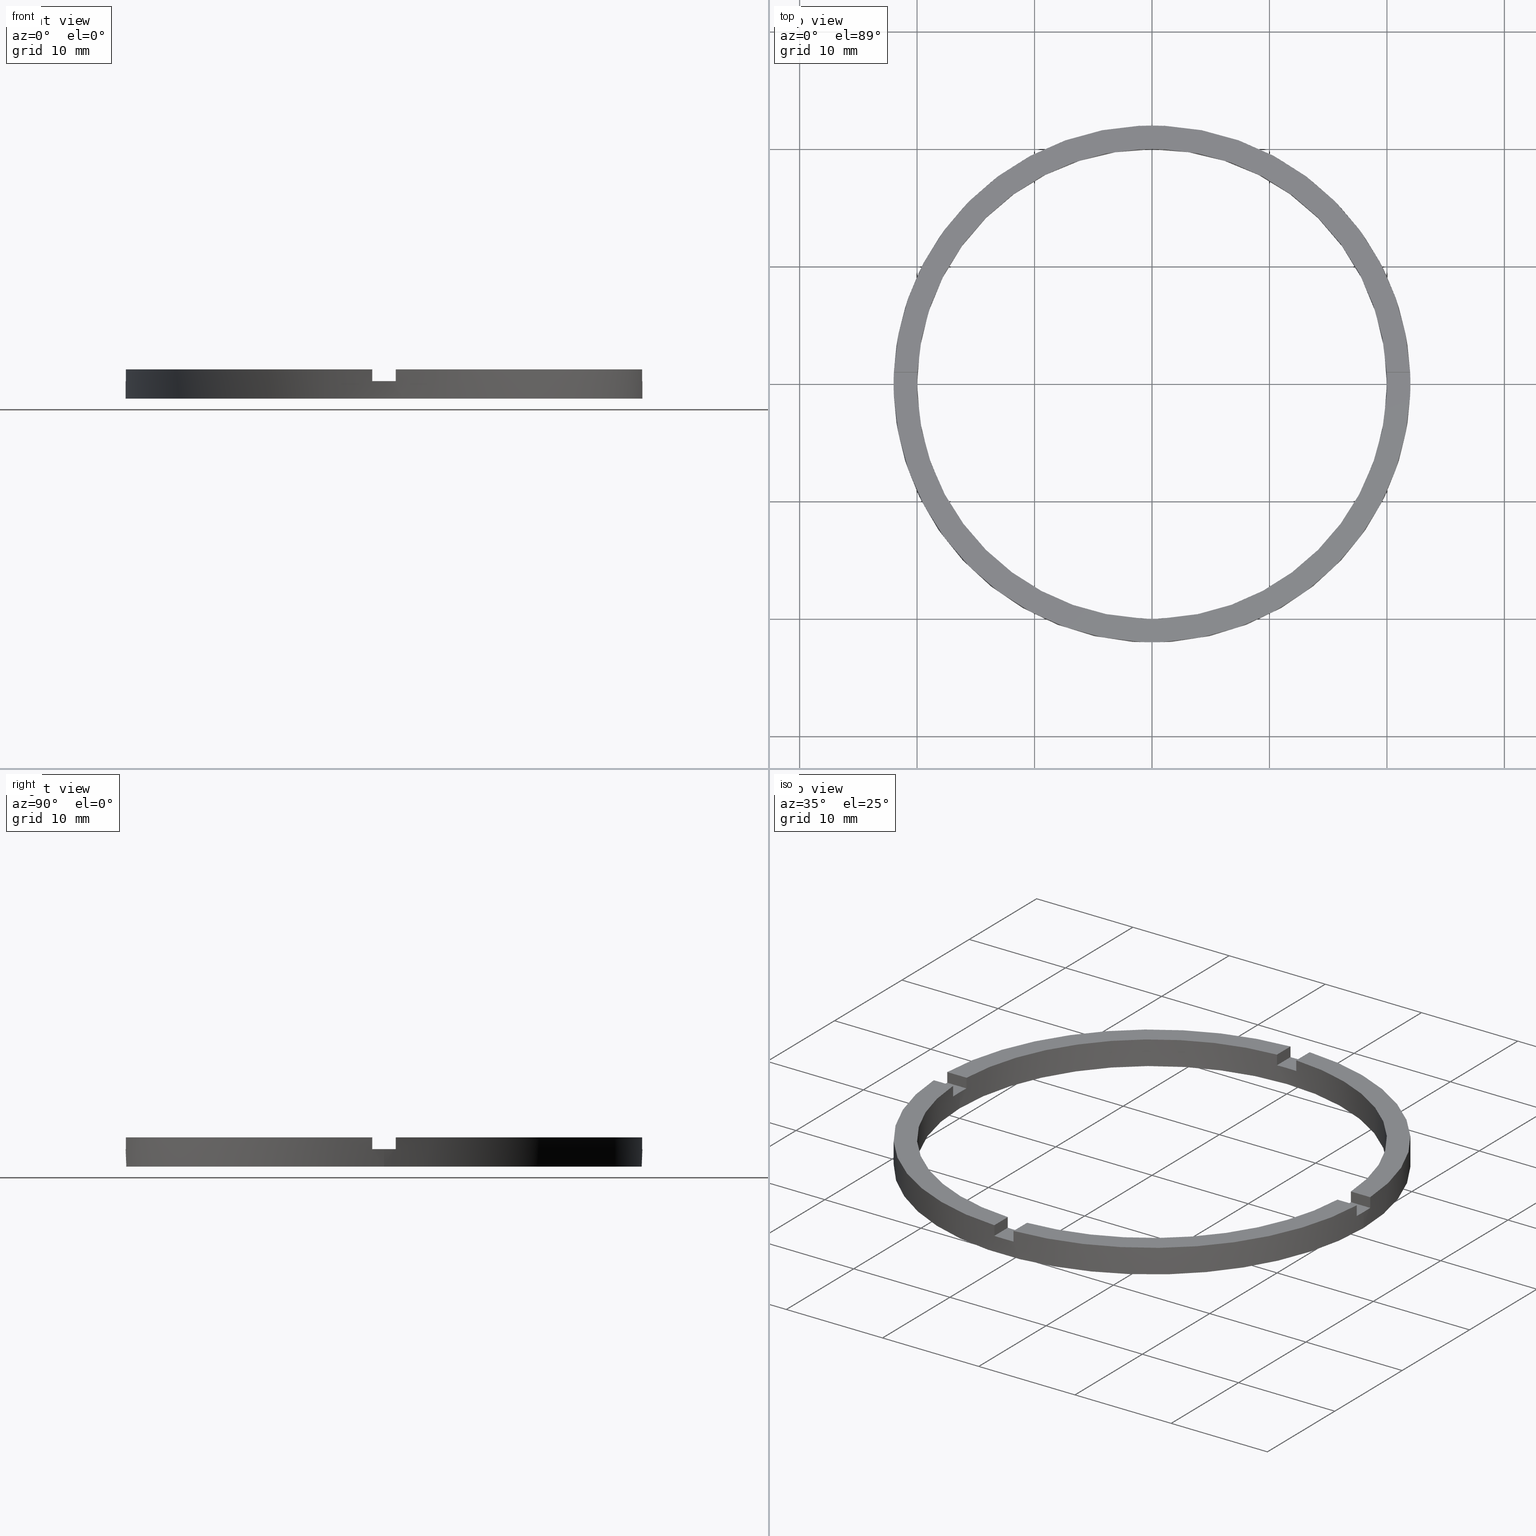
[diagram: canonical four-view strip — front | top / right | iso, engineering-drawing reading convention]
A machine part, canonical four-view strip (front | top / right | iso — engineering-drawing reading convention). The complete STEP part file that produces these views, byte-faithful:
ISO-10303-21;
HEADER;
FILE_DESCRIPTION (( 'STEP AP203' ),
    '1' );
FILE_NAME ('514092.step',
    '2024-12-26T02:36:46',
    ( 'MSI' ),
    ( '' ),
    'SwSTEP 2.0',
    'SolidWorks 2020',
    '' );
FILE_SCHEMA (( 'CONFIG_CONTROL_DESIGN' ));
ENDSEC;

DATA;
#1 = CC_DESIGN_SECURITY_CLASSIFICATION ( #523, ( #273 ) ) ;
#2 = EDGE_CURVE ( 'NONE', #728, #453, #232, .T. ) ;
#3 = DIRECTION ( 'NONE',  ( 0.000000000000000000, 0.000000000000000000, 1.000000000000000000 ) ) ;
#4 = EDGE_CURVE ( 'NONE', #433, #706, #745, .T. ) ;
#5 = CALENDAR_DATE ( 2024, 26, 12 ) ;
#6 = CARTESIAN_POINT ( 'NONE',  ( 0.000000000000000000, 0.000000000000000000, 2.500000000000000000 ) ) ;
#7 = CC_DESIGN_DATE_AND_TIME_ASSIGNMENT ( #557, #142, ( #558 ) ) ;
#8 = DIRECTION ( 'NONE',  ( 1.000000000000000000, 4.336808689942018352E-17, 0.000000000000000000 ) ) ;
#9 = CALENDAR_DATE ( 2024, 26, 12 ) ;
#10 = DIRECTION ( 'NONE',  ( 1.000000000000000000, 0.000000000000000000, 0.000000000000000000 ) ) ;
#11 = EDGE_CURVE ( 'NONE', #179, #433, #228, .T. ) ;
#12 = APPROVAL_DATE_TIME ( #554, #33 ) ;
#13 = CARTESIAN_POINT ( 'NONE',  ( 0.000000000000000000, 0.000000000000000000, 0.000000000000000000 ) ) ;
#14 = PERSON_AND_ORGANIZATION ( #722, #606 ) ;
#15 = APPROVAL_DATE_TIME ( #549, #619 ) ;
#16 = DIRECTION ( 'NONE',  ( 1.000000000000000000, 0.000000000000000000, 0.000000000000000000 ) ) ;
#17 = CARTESIAN_POINT ( 'NONE',  ( 0.000000000000000000, 0.000000000000000000, 2.500000000000000000 ) ) ;
#18 = APPROVAL_PERSON_ORGANIZATION ( #563, #33, #540 ) ;
#19 = CARTESIAN_POINT ( 'NONE',  ( -1.000000000000161648, -19.97498435543817052, 2.500000000000000000 ) ) ;
#20 = COORDINATED_UNIVERSAL_TIME_OFFSET ( 8, 0, .AHEAD. ) ;
#21 = CARTESIAN_POINT ( 'NONE',  ( 20.00000000000000000, 2.449293598294706513E-15, 1.500000000000000000 ) ) ;
#22 = DIRECTION ( 'NONE',  ( 0.000000000000000000, 1.000000000000000000, 0.000000000000000000 ) ) ;
#23 = APPROVAL_PERSON_ORGANIZATION ( #14, #619, #598 ) ;
#24 = CARTESIAN_POINT ( 'NONE',  ( -21.97726097583590743, -1.000000000000025091, 1.500000000000000000 ) ) ;
#25 = CARTESIAN_POINT ( 'NONE',  ( 0.9999999999998384625, -19.97498435543818829, 1.500000000000000000 ) ) ;
#26 = CARTESIAN_POINT ( 'NONE',  ( 0.9999999999999742428, 21.97726097583591098, 2.500000000000000000 ) ) ;
#27 = DATE_AND_TIME ( #5, #293 ) ;
#28 = AXIS2_PLACEMENT_3D ( 'NONE', #575, #387, #127 ) ;
#29 = FACE_OUTER_BOUND ( 'NONE', #560, .T. ) ;
#30 = AXIS2_PLACEMENT_3D ( 'NONE', #77, #321, #422 ) ;
#31 = DIRECTION ( 'NONE',  ( 0.000000000000000000, 0.000000000000000000, 1.000000000000000000 ) ) ;
#32 = FACE_OUTER_BOUND ( 'NONE', #184, .T. ) ;
#33 = APPROVAL ( #209, 'δָ��' ) ;
#34 = FACE_OUTER_BOUND ( 'NONE', #444, .T. ) ;
#35 = EDGE_CURVE ( 'NONE', #464, #44, #719, .T. ) ;
#36 = LINE ( 'NONE', #280, #40 ) ;
#37 = LINE ( 'NONE', #628, #313 ) ;
#38 = DIRECTION ( 'NONE',  ( 0.000000000000000000, 0.000000000000000000, 1.000000000000000000 ) ) ;
#39 = APPROVAL_STATUS ( 'not_yet_approved' ) ;
#40 = VECTOR ( 'NONE', #569, 1000.000000000000000 ) ;
#41 = ORIENTED_EDGE ( 'NONE', *, *, #555, .T. ) ;
#42 = LINE ( 'NONE', #337, #320 ) ;
#43 = ORIENTED_EDGE ( 'NONE', *, *, #407, .F. ) ;
#44 = VERTEX_POINT ( 'NONE', #663 ) ;
#45 = VECTOR ( 'NONE', #147, 1000.000000000000000 ) ;
#46 = ORIENTED_EDGE ( 'NONE', *, *, #561, .T. ) ;
#47 = VECTOR ( 'NONE', #534, 1000.000000000000000 ) ;
#48 = DIRECTION ( 'NONE',  ( 0.000000000000000000, 0.000000000000000000, 1.000000000000000000 ) ) ;
#49 = CARTESIAN_POINT ( 'NONE',  ( 0.000000000000000000, 0.000000000000000000, 1.500000000000000000 ) ) ;
#50 = APPROVAL ( #128, 'δָ��' ) ;
#51 = VECTOR ( 'NONE', #291, 1000.000000000000000 ) ;
#52 = LINE ( 'NONE', #132, #47 ) ;
#53 = VECTOR ( 'NONE', #485, 1000.000000000000000 ) ;
#54 = CARTESIAN_POINT ( 'NONE',  ( 21.97726097583590388, -1.000000000000158096, 1.500000000000000000 ) ) ;
#55 = FACE_OUTER_BOUND ( 'NONE', #454, .T. ) ;
#56 = EDGE_CURVE ( 'NONE', #473, #58, #500, .T. ) ;
#57 = LINE ( 'NONE', #213, #310 ) ;
#58 = VERTEX_POINT ( 'NONE', #26 ) ;
#59 = ADVANCED_FACE ( 'NONE', ( #501 ), #133, .F. ) ;
#60 = VECTOR ( 'NONE', #605, 1000.000000000000000 ) ;
#61 = ORIENTED_EDGE ( 'NONE', *, *, #35, .T. ) ;
#62 = ADVANCED_FACE ( 'NONE', ( #202 ), #731, .F. ) ;
#63 = FACE_OUTER_BOUND ( 'NONE', #148, .T. ) ;
#64 = LINE ( 'NONE', #476, #579 ) ;
#65 = VECTOR ( 'NONE', #662, 1000.000000000000000 ) ;
#66 = PRODUCT ( '514092', '514092', '', ( #289 ) ) ;
#67 = FACE_OUTER_BOUND ( 'NONE', #583, .T. ) ;
#68 = LINE ( 'NONE', #632, #51 ) ;
#69 = CIRCLE ( 'NONE', #650, 20.00000000000000000 ) ;
#70 = DIRECTION ( 'NONE',  ( -1.000000000000000000, -4.336808689942018352E-17, 0.000000000000000000 ) ) ;
#71 = LINE ( 'NONE', #224, #601 ) ;
#72 = ORIENTED_EDGE ( 'NONE', *, *, #415, .T. ) ;
#73 = CARTESIAN_POINT ( 'NONE',  ( 0.000000000000000000, 0.000000000000000000, 2.500000000000000000 ) ) ;
#74 = PERSON_AND_ORGANIZATION ( #722, #606 ) ;
#75 = DIRECTION ( 'NONE',  ( 0.000000000000000000, 0.000000000000000000, 1.000000000000000000 ) ) ;
#76 = LOCAL_TIME ( 10, 36, 46.00000000000000000, #359 ) ;
#77 = CARTESIAN_POINT ( 'NONE',  ( 0.000000000000000000, 0.000000000000000000, 2.500000000000000000 ) ) ;
#78 = EDGE_CURVE ( 'NONE', #491, #430, #218, .T. ) ;
#79 = APPROVAL_DATE_TIME ( #354, #50 ) ;
#80 = AXIS2_PLACEMENT_3D ( 'NONE', #90, #450, #363 ) ;
#81 = AXIS2_PLACEMENT_3D ( 'NONE', #638, #693, #252 ) ;
#82 = CARTESIAN_POINT ( 'NONE',  ( 0.000000000000000000, 0.000000000000000000, 1.500000000000000000 ) ) ;
#83 = ORIENTED_EDGE ( 'NONE', *, *, #555, .F. ) ;
#84 = PERSON_AND_ORGANIZATION ( #722, #606 ) ;
#85 = CARTESIAN_POINT ( 'NONE',  ( 19.97498435543818829, 0.9999999999998419042, 1.500000000000000000 ) ) ;
#86 = CC_DESIGN_APPROVAL ( #33, ( #273 ) ) ;
#87 = CARTESIAN_POINT ( 'NONE',  ( 0.000000000000000000, 0.000000000000000000, 1.500000000000000000 ) ) ;
#88 = CARTESIAN_POINT ( 'NONE',  ( 0.000000000000000000, 0.000000000000000000, 1.500000000000000000 ) ) ;
#89 = DIRECTION ( 'NONE',  ( 1.000000000000000000, 0.000000000000000000, 0.000000000000000000 ) ) ;
#90 = CARTESIAN_POINT ( 'NONE',  ( 0.000000000000000000, 0.000000000000000000, 0.000000000000000000 ) ) ;
#91 = APPLICATION_CONTEXT ( 'configuration controlled 3d designs of mechanical parts and assemblies' ) ;
#92 = AXIS2_PLACEMENT_3D ( 'NONE', #297, #105, #696 ) ;
#93 = PLANE ( 'NONE',  #652 ) ;
#94 = CARTESIAN_POINT ( 'NONE',  ( -20.00000000000000000, 0.000000000000000000, 1.500000000000000000 ) ) ;
#95 = DIRECTION ( 'NONE',  ( 1.000000000000000000, 0.000000000000000000, 0.000000000000000000 ) ) ;
#96 = DIRECTION ( 'NONE',  ( 1.000000000000000000, 0.000000000000000000, -0.000000000000000000 ) ) ;
#97 = EDGE_CURVE ( 'NONE', #728, #58, #498, .T. ) ;
#98 = CARTESIAN_POINT ( 'NONE',  ( 0.000000000000000000, 0.000000000000000000, 1.500000000000000000 ) ) ;
#99 = CARTESIAN_POINT ( 'NONE',  ( 0.9999999999999742428, 19.97498435543818118, 2.500000000000000000 ) ) ;
#100 = DIRECTION ( 'NONE',  ( 1.734723475976807341E-16, -1.000000000000000000, 0.000000000000000000 ) ) ;
#101 = DIRECTION ( 'NONE',  ( 0.000000000000000000, 0.000000000000000000, 1.000000000000000000 ) ) ;
#102 = DIRECTION ( 'NONE',  ( -0.000000000000000000, -0.000000000000000000, -1.000000000000000000 ) ) ;
#103 = DIRECTION ( 'NONE',  ( 0.000000000000000000, 0.000000000000000000, 1.000000000000000000 ) ) ;
#104 = CARTESIAN_POINT ( 'NONE',  ( -12.00000000000018474, 0.9999999999999765743, 1.500000000000000000 ) ) ;
#105 = DIRECTION ( 'NONE',  ( 0.000000000000000000, 0.000000000000000000, 1.000000000000000000 ) ) ;
#106 = EDGE_CURVE ( 'NONE', #472, #701, #746, .T. ) ;
#107 = CARTESIAN_POINT ( 'NONE',  ( 0.9999999999999742428, 19.97498435543818118, 2.500000000000000000 ) ) ;
#108 = VECTOR ( 'NONE', #657, 1000.000000000000000 ) ;
#109 = DIRECTION ( 'NONE',  ( 1.000000000000000000, 0.000000000000000000, 0.000000000000000000 ) ) ;
#110 = CARTESIAN_POINT ( 'NONE',  ( 0.9999999999998384625, -19.97498435543818829, 2.500000000000000000 ) ) ;
#111 = ADVANCED_FACE ( 'NONE', ( #230 ), #480, .T. ) ;
#112 = AXIS2_PLACEMENT_3D ( 'NONE', #362, #399, #675 ) ;
#113 = AXIS2_PLACEMENT_3D ( 'NONE', #715, #783, #115 ) ;
#114 = AXIS2_PLACEMENT_3D ( 'NONE', #98, #625, #522 ) ;
#115 = DIRECTION ( 'NONE',  ( 1.000000000000000000, 0.000000000000000000, -0.000000000000000000 ) ) ;
#116 = EDGE_CURVE ( 'NONE', #188, #704, #219, .T. ) ;
#117 = DIRECTION ( 'NONE',  ( -4.336808689942018352E-17, 1.000000000000000000, 0.000000000000000000 ) ) ;
#118 = DIRECTION ( 'NONE',  ( 1.000000000000000000, 0.000000000000000000, 0.000000000000000000 ) ) ;
#119 = PLANE ( 'NONE',  #633 ) ;
#120 = DIRECTION ( 'NONE',  ( -0.000000000000000000, -0.000000000000000000, -1.000000000000000000 ) ) ;
#121 = CARTESIAN_POINT ( 'NONE',  ( 0.9999999999999742428, 21.97726097583591098, 2.500000000000000000 ) ) ;
#122 = CARTESIAN_POINT ( 'NONE',  ( -12.00000000000018474, 0.9999999999999765743, 1.500000000000000000 ) ) ;
#123 = DIRECTION ( 'NONE',  ( 0.000000000000000000, 0.000000000000000000, 1.000000000000000000 ) ) ;
#124 = PERSON_AND_ORGANIZATION_ROLE ( 'design_supplier' ) ;
#125 = CARTESIAN_POINT ( 'NONE',  ( 21.97726097583590388, -1.000000000000158096, 2.500000000000000000 ) ) ;
#126 = DESIGN_CONTEXT ( 'detailed design', #91, 'design' ) ;
#127 = DIRECTION ( 'NONE',  ( 1.000000000000000000, 0.000000000000000000, 0.000000000000000000 ) ) ;
#128 = APPROVAL_STATUS ( 'not_yet_approved' ) ;
#129 = EDGE_CURVE ( 'NONE', #430, #186, #235, .T. ) ;
#130 = CARTESIAN_POINT ( 'NONE',  ( -1.000000000000162759, -12.00000000000017941, 1.500000000000000000 ) ) ;
#131 = EDGE_CURVE ( 'NONE', #179, #58, #747, .T. ) ;
#132 = CARTESIAN_POINT ( 'NONE',  ( 0.9999999999998373523, -12.00000000000017941, 1.500000000000000000 ) ) ;
#133 = PLANE ( 'NONE',  #168 ) ;
#134 = EDGE_LOOP ( 'NONE', ( #162, #699, #221, #445 ) ) ;
#135 = AXIS2_PLACEMENT_3D ( 'NONE', #104, #243, #408 ) ;
#136 = AXIS2_PLACEMENT_3D ( 'NONE', #370, #780, #96 ) ;
#137 = EDGE_CURVE ( 'NONE', #504, #435, #479, .T. ) ;
#138 = EDGE_CURVE ( 'NONE', #435, #661, #484, .T. ) ;
#139 = DIRECTION ( 'NONE',  ( -1.301042606982605321E-16, 1.000000000000000000, 0.000000000000000000 ) ) ;
#140 = DIRECTION ( 'NONE',  ( -1.000000000000000000, -1.734723475976807341E-16, 0.000000000000000000 ) ) ;
#141 = CARTESIAN_POINT ( 'NONE',  ( 19.97498435543817408, -1.000000000000158096, 2.500000000000000000 ) ) ;
#142 = DATE_TIME_ROLE ( 'creation_date' ) ;
#143 = ORIENTED_EDGE ( 'NONE', *, *, #735, .T. ) ;
#144 = EDGE_CURVE ( 'NONE', #504, #181, #724, .T. ) ;
#145 = DIRECTION ( 'NONE',  ( -0.000000000000000000, -0.000000000000000000, -1.000000000000000000 ) ) ;
#146 = CARTESIAN_POINT ( 'NONE',  ( -1.000000000000161426, -21.97726097583590033, 2.500000000000000000 ) ) ;
#147 = DIRECTION ( 'NONE',  ( 1.000000000000000000, 1.734723475976807341E-16, -0.000000000000000000 ) ) ;
#148 = EDGE_LOOP ( 'NONE', ( #414, #180, #466, #360, #580, #656 ) ) ;
#149 = VERTEX_POINT ( 'NONE', #161 ) ;
#150 = ORIENTED_EDGE ( 'NONE', *, *, #11, .F. ) ;
#151 = DIRECTION ( 'NONE',  ( 0.000000000000000000, 0.000000000000000000, 1.000000000000000000 ) ) ;
#152 = DIRECTION ( 'NONE',  ( 1.000000000000000000, 0.000000000000000000, 0.000000000000000000 ) ) ;
#153 = ORIENTED_EDGE ( 'NONE', *, *, #671, .T. ) ;
#154 = EDGE_LOOP ( 'NONE', ( #714, #734, #769, #658 ) ) ;
#155 = ORIENTED_EDGE ( 'NONE', *, *, #550, .F. ) ;
#156 = ORIENTED_EDGE ( 'NONE', *, *, #254, .F. ) ;
#157 = ORIENTED_EDGE ( 'NONE', *, *, #732, .F. ) ;
#158 = ORIENTED_EDGE ( 'NONE', *, *, #377, .F. ) ;
#159 = ADVANCED_FACE ( 'NONE', ( #238 ), #645, .T. ) ;
#160 = ORIENTED_EDGE ( 'NONE', *, *, #137, .T. ) ;
#161 = CARTESIAN_POINT ( 'NONE',  ( -1.000000000000161426, -21.97726097583590033, 2.500000000000000000 ) ) ;
#162 = ORIENTED_EDGE ( 'NONE', *, *, #2, .T. ) ;
#163 = AXIS2_PLACEMENT_3D ( 'NONE', #460, #102, #636 ) ;
#164 = ORIENTED_EDGE ( 'NONE', *, *, #543, .F. ) ;
#165 = EDGE_LOOP ( 'NONE', ( #331, #521, #673, #674 ) ) ;
#166 = CC_DESIGN_PERSON_AND_ORGANIZATION_ASSIGNMENT ( #290, #397, ( #273 ) ) ;
#167 = VERTEX_POINT ( 'NONE', #411 ) ;
#168 = AXIS2_PLACEMENT_3D ( 'NONE', #630, #100, #216 ) ;
#169 = ORIENTED_EDGE ( 'NONE', *, *, #97, .F. ) ;
#170 = ORIENTED_EDGE ( 'NONE', *, *, #189, .T. ) ;
#171 = ORIENTED_EDGE ( 'NONE', *, *, #773, .T. ) ;
#172 = ADVANCED_FACE ( 'NONE', ( #725 ), #539, .T. ) ;
#173 = ORIENTED_EDGE ( 'NONE', *, *, #259, .T. ) ;
#174 = ORIENTED_EDGE ( 'NONE', *, *, #2, .F. ) ;
#175 = ORIENTED_EDGE ( 'NONE', *, *, #434, .F. ) ;
#176 = ORIENTED_EDGE ( 'NONE', *, *, #615, .T. ) ;
#177 = ORIENTED_EDGE ( 'NONE', *, *, #106, .F. ) ;
#178 = EDGE_LOOP ( 'NONE', ( #366, #577, #46, #334, #317, #680, #426, #164, #573, #436, #465, #204 ) ) ;
#179 = VERTEX_POINT ( 'NONE', #772 ) ;
#180 = ORIENTED_EDGE ( 'NONE', *, *, #116, .T. ) ;
#181 = VERTEX_POINT ( 'NONE', #141 ) ;
#182 = ORIENTED_EDGE ( 'NONE', *, *, #391, .T. ) ;
#183 = DIRECTION ( 'NONE',  ( -0.000000000000000000, -0.000000000000000000, -1.000000000000000000 ) ) ;
#184 = EDGE_LOOP ( 'NONE', ( #143, #490, #421, #672 ) ) ;
#185 = ORIENTED_EDGE ( 'NONE', *, *, #391, .F. ) ;
#186 = VERTEX_POINT ( 'NONE', #357 ) ;
#187 = ORIENTED_EDGE ( 'NONE', *, *, #621, .F. ) ;
#188 = VERTEX_POINT ( 'NONE', #288 ) ;
#189 = EDGE_CURVE ( 'NONE', #263, #689, #212, .T. ) ;
#190 = CARTESIAN_POINT ( 'NONE',  ( 0.000000000000000000, 0.000000000000000000, 1.500000000000000000 ) ) ;
#191 = ORIENTED_EDGE ( 'NONE', *, *, #259, .F. ) ;
#192 = EDGE_LOOP ( 'NONE', ( #153, #451, #157, #155 ) ) ;
#193 = EDGE_CURVE ( 'NONE', #692, #186, #738, .T. ) ;
#194 = ORIENTED_EDGE ( 'NONE', *, *, #129, .T. ) ;
#195 = EDGE_LOOP ( 'NONE', ( #160, #698, #687, #440, #194, #727, #173, #175, #721, #743, #470, #702 ) ) ;
#196 = DIRECTION ( 'NONE',  ( 0.000000000000000000, 0.000000000000000000, 1.000000000000000000 ) ) ;
#197 = EDGE_LOOP ( 'NONE', ( #223, #688, #717, #683 ) ) ;
#198 = DIRECTION ( 'NONE',  ( 1.000000000000000000, 1.734723475976807341E-16, -0.000000000000000000 ) ) ;
#199 = EDGE_LOOP ( 'NONE', ( #417, #262, #171, #346 ) ) ;
#200 = CARTESIAN_POINT ( 'NONE',  ( 0.9999999999998373523, -12.00000000000017941, 1.500000000000000000 ) ) ;
#201 = DIRECTION ( 'NONE',  ( 1.000000000000000000, 0.000000000000000000, -0.000000000000000000 ) ) ;
#202 = FACE_OUTER_BOUND ( 'NONE', #134, .T. ) ;
#203 = EDGE_CURVE ( 'NONE', #278, #438, #739, .T. ) ;
#204 = ORIENTED_EDGE ( 'NONE', *, *, #381, .T. ) ;
#205 = PLANE ( 'NONE',  #710 ) ;
#206 = VECTOR ( 'NONE', #544, 1000.000000000000000 ) ;
#207 = CIRCLE ( 'NONE', #80, 22.00000000000000000 ) ;
#208 = CARTESIAN_POINT ( 'NONE',  ( 0.000000000000000000, 0.000000000000000000, 2.500000000000000000 ) ) ;
#209 = APPROVAL_STATUS ( 'not_yet_approved' ) ;
#210 = VECTOR ( 'NONE', #401, 1000.000000000000000 ) ;
#211 = ORIENTED_EDGE ( 'NONE', *, *, #131, .T. ) ;
#212 = LINE ( 'NONE', #364, #210 ) ;
#213 = CARTESIAN_POINT ( 'NONE',  ( -1.000000000000162759, -12.00000000000017941, 1.500000000000000000 ) ) ;
#214 = EDGE_LOOP ( 'NONE', ( #667, #239, #174, #487 ) ) ;
#215 = CARTESIAN_POINT ( 'NONE',  ( -21.97726097583591098, 0.9999999999999749090, 1.500000000000000000 ) ) ;
#216 = DIRECTION ( 'NONE',  ( 1.000000000000000000, 1.734723475976807341E-16, 0.000000000000000000 ) ) ;
#217 = DATE_TIME_ROLE ( 'classification_date' ) ;
#218 = CIRCLE ( 'NONE', #296, 20.00000000000000000 ) ;
#219 = CIRCLE ( 'NONE', #712, 22.00000000000000000 ) ;
#220 = ORIENTED_EDGE ( 'NONE', *, *, #254, .T. ) ;
#221 = ORIENTED_EDGE ( 'NONE', *, *, #499, .F. ) ;
#222 = CARTESIAN_POINT ( 'NONE',  ( 22.00000000000000000, 2.694222958124176809E-15, 0.000000000000000000 ) ) ;
#223 = ORIENTED_EDGE ( 'NONE', *, *, #189, .F. ) ;
#224 = CARTESIAN_POINT ( 'NONE',  ( -22.00000000000000000, 0.000000000000000000, 2.500000000000000000 ) ) ;
#225 = DIRECTION ( 'NONE',  ( 1.000000000000000000, 0.000000000000000000, -0.000000000000000000 ) ) ;
#226 = DIRECTION ( 'NONE',  ( 0.000000000000000000, -0.000000000000000000, 1.000000000000000000 ) ) ;
#227 =( LENGTH_UNIT ( ) NAMED_UNIT ( * ) SI_UNIT ( .MILLI., .METRE. ) );
#228 = CIRCLE ( 'NONE', #237, 22.00000000000000000 ) ;
#229 = AXIS2_PLACEMENT_3D ( 'NONE', #469, #31, #590 ) ;
#230 = FACE_OUTER_BOUND ( 'NONE', #178, .T. ) ;
#231 = AXIS2_PLACEMENT_3D ( 'NONE', #483, #48, #109 ) ;
#232 = LINE ( 'NONE', #412, #474 ) ;
#233 = CC_DESIGN_PERSON_AND_ORGANIZATION_ASSIGNMENT ( #298, #124, ( #273 ) ) ;
#234 = DIRECTION ( 'NONE',  ( -1.000000000000000000, -4.336808689942018352E-17, -0.000000000000000000 ) ) ;
#235 = CIRCLE ( 'NONE', #765, 20.00000000000000000 ) ;
#236 = CARTESIAN_POINT ( 'NONE',  ( -20.00000000000000000, 0.000000000000000000, 0.000000000000000000 ) ) ;
#237 = AXIS2_PLACEMENT_3D ( 'NONE', #627, #226, #350 ) ;
#238 = FACE_OUTER_BOUND ( 'NONE', #767, .T. ) ;
#239 = ORIENTED_EDGE ( 'NONE', *, *, #299, .F. ) ;
#240 = CYLINDRICAL_SURFACE ( 'NONE', #304, 20.00000000000000000 ) ;
#241 = CIRCLE ( 'NONE', #425, 22.00000000000000000 ) ;
#242 = CARTESIAN_POINT ( 'NONE',  ( 0.000000000000000000, 0.000000000000000000, 1.500000000000000000 ) ) ;
#243 = DIRECTION ( 'NONE',  ( -1.734723475976807341E-16, 1.000000000000000000, 0.000000000000000000 ) ) ;
#244 = DIRECTION ( 'NONE',  ( -0.000000000000000000, 0.000000000000000000, 1.000000000000000000 ) ) ;
#245 = FACE_OUTER_BOUND ( 'NONE', #195, .T. ) ;
#246 = EDGE_CURVE ( 'NONE', #647, #473, #496, .T. ) ;
#247 = VECTOR ( 'NONE', #250, 1000.000000000000000 ) ;
#248 = CC_DESIGN_DATE_AND_TIME_ASSIGNMENT ( #27, #217, ( #523 ) ) ;
#249 = LINE ( 'NONE', #146, #257 ) ;
#250 = DIRECTION ( 'NONE',  ( -0.000000000000000000, -0.000000000000000000, -1.000000000000000000 ) ) ;
#251 = LINE ( 'NONE', #300, #762 ) ;
#252 = DIRECTION ( 'NONE',  ( 1.000000000000000000, 0.000000000000000000, 0.000000000000000000 ) ) ;
#253 = CARTESIAN_POINT ( 'NONE',  ( 0.000000000000000000, 0.000000000000000000, 2.500000000000000000 ) ) ;
#254 = EDGE_CURVE ( 'NONE', #647, #706, #759, .T. ) ;
#255 = CIRCLE ( 'NONE', #519, 20.00000000000000000 ) ;
#256 = ADVANCED_FACE ( 'NONE', ( #512 ), #406, .F. ) ;
#257 = VECTOR ( 'NONE', #349, 1000.000000000000000 ) ;
#258 = EDGE_LOOP ( 'NONE', ( #441, #503, #733, #467 ) ) ;
#259 = EDGE_CURVE ( 'NONE', #692, #455, #505, .T. ) ;
#260 = LINE ( 'NONE', #778, #750 ) ;
#261 = ORIENTED_EDGE ( 'NONE', *, *, #754, .T. ) ;
#262 = ORIENTED_EDGE ( 'NONE', *, *, #434, .T. ) ;
#263 = VERTEX_POINT ( 'NONE', #268 ) ;
#264 = VERTEX_POINT ( 'NONE', #329 ) ;
#265 = ORIENTED_EDGE ( 'NONE', *, *, #11, .T. ) ;
#266 = ADVANCED_FACE ( 'NONE', ( #510 ), #642, .F. ) ;
#267 = CARTESIAN_POINT ( 'NONE',  ( 11.99999999999999289, 0.9999999999998414602, 1.500000000000000000 ) ) ;
#268 = CARTESIAN_POINT ( 'NONE',  ( -1.000000000000025757, 21.97726097583590743, 2.500000000000000000 ) ) ;
#269 = DIRECTION ( 'NONE',  ( 1.000000000000000000, 0.000000000000000000, 0.000000000000000000 ) ) ;
#270 = AXIS2_PLACEMENT_3D ( 'NONE', #6, #75, #382 ) ;
#271 = CARTESIAN_POINT ( 'NONE',  ( 11.99999999999999289, -1.000000000000158540, 1.500000000000000000 ) ) ;
#272 = AXIS2_PLACEMENT_3D ( 'NONE', #88, #196, #274 ) ;
#273 = PRODUCT_DEFINITION_FORMATION_WITH_SPECIFIED_SOURCE ( '�κ�', '', #66, .NOT_KNOWN. ) ;
#274 = DIRECTION ( 'NONE',  ( 1.000000000000000000, 0.000000000000000000, 0.000000000000000000 ) ) ;
#275 = CARTESIAN_POINT ( 'NONE',  ( -1.000000000000025757, 19.97498435543817763, 2.500000000000000000 ) ) ;
#276 = PLANE ( 'NONE',  #517 ) ;
#277 = DIRECTION ( 'NONE',  ( 0.000000000000000000, 0.000000000000000000, 1.000000000000000000 ) ) ;
#278 = VERTEX_POINT ( 'NONE', #54 ) ;
#279 = EDGE_CURVE ( 'NONE', #777, #446, #760, .T. ) ;
#280 = CARTESIAN_POINT ( 'NONE',  ( -20.00000000000000000, 0.000000000000000000, 2.500000000000000000 ) ) ;
#281 = SECURITY_CLASSIFICATION_LEVEL ( 'unclassified' ) ;
#282 = EDGE_CURVE ( 'NONE', #691, #697, #260, .T. ) ;
#283 = PLANE ( 'NONE',  #494 ) ;
#284 = EDGE_CURVE ( 'NONE', #504, #278, #514, .T. ) ;
#285 = DIRECTION ( 'NONE',  ( -0.000000000000000000, -1.000000000000000000, -0.000000000000000000 ) ) ;
#286 = DIRECTION ( 'NONE',  ( -0.000000000000000000, -0.000000000000000000, -1.000000000000000000 ) ) ;
#287 = CARTESIAN_POINT ( 'NONE',  ( -1.000000000000161648, -19.97498435543817052, 2.500000000000000000 ) ) ;
#288 = CARTESIAN_POINT ( 'NONE',  ( -22.00000000000000000, 0.000000000000000000, 1.500000000000000000 ) ) ;
#289 = MECHANICAL_CONTEXT ( 'NONE', #478, 'mechanical' ) ;
#290 = PERSON_AND_ORGANIZATION ( #722, #606 ) ;
#291 = DIRECTION ( 'NONE',  ( 1.000000000000000000, 4.336808689942018352E-17, 0.000000000000000000 ) ) ;
#292 = SHAPE_DEFINITION_REPRESENTATION ( #528, #383 ) ;
#293 = LOCAL_TIME ( 10, 36, 46.00000000000000000, #553 ) ;
#294 = DIRECTION ( 'NONE',  ( 0.000000000000000000, 0.000000000000000000, 1.000000000000000000 ) ) ;
#295 = CARTESIAN_POINT ( 'NONE',  ( 0.000000000000000000, 0.000000000000000000, 2.500000000000000000 ) ) ;
#296 = AXIS2_PLACEMENT_3D ( 'NONE', #416, #508, #556 ) ;
#297 = CARTESIAN_POINT ( 'NONE',  ( 0.000000000000000000, 0.000000000000000000, 2.500000000000000000 ) ) ;
#298 = PERSON_AND_ORGANIZATION ( #722, #606 ) ;
#299 = EDGE_CURVE ( 'NONE', #453, #473, #255, .T. ) ;
#300 = CARTESIAN_POINT ( 'NONE',  ( -19.97498435543818118, 0.9999999999999753530, 2.500000000000000000 ) ) ;
#301 = CARTESIAN_POINT ( 'NONE',  ( 21.97726097583591809, 0.9999999999998419042, 2.500000000000000000 ) ) ;
#302 = AXIS2_PLACEMENT_3D ( 'NONE', #537, #559, #420 ) ;
#303 = LOCAL_TIME ( 10, 36, 46.00000000000000000, #547 ) ;
#304 = AXIS2_PLACEMENT_3D ( 'NONE', #253, #695, #368 ) ;
#305 = ADVANCED_FACE ( 'NONE', ( #753 ), #639, .F. ) ;
#306 = PERSON_AND_ORGANIZATION ( #722, #606 ) ;
#307 = EDGE_CURVE ( 'NONE', #491, #326, #251, .T. ) ;
#308 = LINE ( 'NONE', #626, #309 ) ;
#309 = VECTOR ( 'NONE', #140, 1000.000000000000000 ) ;
#310 = VECTOR ( 'NONE', #327, 1000.000000000000000 ) ;
#311 = LINE ( 'NONE', #122, #585 ) ;
#312 = ADVANCED_FACE ( 'NONE', ( #245 ), #240, .F. ) ;
#313 = VECTOR ( 'NONE', #386, 1000.000000000000000 ) ;
#314 = ORIENTED_EDGE ( 'NONE', *, *, #4, .T. ) ;
#315 = VECTOR ( 'NONE', #198, 1000.000000000000000 ) ;
#316 = LINE ( 'NONE', #617, #322 ) ;
#317 = ORIENTED_EDGE ( 'NONE', *, *, #282, .T. ) ;
#318 = LINE ( 'NONE', #405, #53 ) ;
#319 = ORIENTED_EDGE ( 'NONE', *, *, #671, .F. ) ;
#320 = VECTOR ( 'NONE', #530, 1000.000000000000000 ) ;
#321 = DIRECTION ( 'NONE',  ( 0.000000000000000000, 0.000000000000000000, 1.000000000000000000 ) ) ;
#322 = VECTOR ( 'NONE', #749, 1000.000000000000000 ) ;
#323 = CARTESIAN_POINT ( 'NONE',  ( -21.97726097583591098, 0.9999999999999749090, 2.500000000000000000 ) ) ;
#324 = VECTOR ( 'NONE', #770, 1000.000000000000000 ) ;
#325 = VECTOR ( 'NONE', #529, 1000.000000000000000 ) ;
#326 = VERTEX_POINT ( 'NONE', #404 ) ;
#327 = DIRECTION ( 'NONE',  ( 1.301042606982605321E-16, -1.000000000000000000, 0.000000000000000000 ) ) ;
#328 = CIRCLE ( 'NONE', #302, 22.00000000000000000 ) ;
#329 = CARTESIAN_POINT ( 'NONE',  ( 21.97726097583590388, -1.000000000000158096, 2.500000000000000000 ) ) ;
#330 = VECTOR ( 'NONE', #335, 1000.000000000000000 ) ;
#331 = ORIENTED_EDGE ( 'NONE', *, *, #754, .F. ) ;
#332 = FACE_OUTER_BOUND ( 'NONE', #214, .T. ) ;
#333 = DIRECTION ( 'NONE',  ( 0.000000000000000000, 0.000000000000000000, 1.000000000000000000 ) ) ;
#334 = ORIENTED_EDGE ( 'NONE', *, *, #348, .F. ) ;
#335 = DIRECTION ( 'NONE',  ( -1.301042606982605321E-16, 1.000000000000000000, -0.000000000000000000 ) ) ;
#336 = LINE ( 'NONE', #542, #60 ) ;
#337 = CARTESIAN_POINT ( 'NONE',  ( 20.00000000000000000, 2.449293598294706513E-15, 2.500000000000000000 ) ) ;
#338 = FACE_OUTER_BOUND ( 'NONE', #197, .T. ) ;
#339 = CC_DESIGN_APPROVAL ( #619, ( #523 ) ) ;
#340 = LINE ( 'NONE', #595, #324 ) ;
#341 = LINE ( 'NONE', #562, #597 ) ;
#342 = AXIS2_PLACEMENT_3D ( 'NONE', #267, #117, #70 ) ;
#343 = DIRECTION ( 'NONE',  ( -0.000000000000000000, 0.000000000000000000, 1.000000000000000000 ) ) ;
#344 = CIRCLE ( 'NONE', #270, 22.00000000000000000 ) ;
#345 = CARTESIAN_POINT ( 'NONE',  ( -1.000000000000025757, 21.97726097583590743, 1.500000000000000000 ) ) ;
#346 = ORIENTED_EDGE ( 'NONE', *, *, #358, .F. ) ;
#347 = DIRECTION ( 'NONE',  ( -1.000000000000000000, -1.301042606982605321E-16, 0.000000000000000000 ) ) ;
#348 = EDGE_CURVE ( 'NONE', #691, #264, #766, .T. ) ;
#349 = DIRECTION ( 'NONE',  ( 0.000000000000000000, 0.000000000000000000, 1.000000000000000000 ) ) ;
#350 = DIRECTION ( 'NONE',  ( 1.000000000000000000, 0.000000000000000000, 0.000000000000000000 ) ) ;
#351 = APPLICATION_PROTOCOL_DEFINITION ( 'international standard', 'config_control_design', 1994, #91 ) ;
#352 = APPROVAL_PERSON_ORGANIZATION ( #74, #50, #463 ) ;
#353 = LOCAL_TIME ( 10, 36, 46.00000000000000000, #607 ) ;
#354 = DATE_AND_TIME ( #608, #353 ) ;
#355 = CARTESIAN_POINT ( 'NONE',  ( -1.000000000000025757, 11.99999999999999822, 1.500000000000000000 ) ) ;
#356 = CARTESIAN_POINT ( 'NONE',  ( -22.00000000000000000, 0.000000000000000000, 0.000000000000000000 ) ) ;
#357 = CARTESIAN_POINT ( 'NONE',  ( -19.97498435543818118, -1.000000000000024647, 1.500000000000000000 ) ) ;
#358 = EDGE_CURVE ( 'NONE', #167, #149, #249, .T. ) ;
#359 = COORDINATED_UNIVERSAL_TIME_OFFSET ( 8, 0, .AHEAD. ) ;
#360 = ORIENTED_EDGE ( 'NONE', *, *, #129, .F. ) ;
#361 = UNCERTAINTY_MEASURE_WITH_UNIT (LENGTH_MEASURE( 1.000000000000000082E-05 ), #227, 'distance_accuracy_value', 'NONE');
#362 = CARTESIAN_POINT ( 'NONE',  ( 0.000000000000000000, 0.000000000000000000, 1.500000000000000000 ) ) ;
#363 = DIRECTION ( 'NONE',  ( 1.000000000000000000, 0.000000000000000000, 0.000000000000000000 ) ) ;
#364 = CARTESIAN_POINT ( 'NONE',  ( -1.000000000000025757, 11.99999999999999822, 2.500000000000000000 ) ) ;
#365 = EDGE_CURVE ( 'NONE', #728, #703, #506, .T. ) ;
#366 = ORIENTED_EDGE ( 'NONE', *, *, #584, .F. ) ;
#367 = MANIFOLD_SOLID_BREP ( '�г�-����1', #518 ) ;
#368 = DIRECTION ( 'NONE',  ( -1.000000000000000000, 0.000000000000000000, 0.000000000000000000 ) ) ;
#369 = DIRECTION ( 'NONE',  ( 1.000000000000000000, 0.000000000000000000, 0.000000000000000000 ) ) ;
#370 = CARTESIAN_POINT ( 'NONE',  ( 0.000000000000000000, 0.000000000000000000, 2.500000000000000000 ) ) ;
#371 = ADVANCED_FACE ( 'NONE', ( #752 ), #538, .T. ) ;
#372 = EDGE_CURVE ( 'NONE', #438, #703, #241, .T. ) ;
#373 = AXIS2_PLACEMENT_3D ( 'NONE', #400, #439, #525 ) ;
#374 = AXIS2_PLACEMENT_3D ( 'NONE', #616, #648, #118 ) ;
#375 = DIRECTION ( 'NONE',  ( 1.000000000000000000, 0.000000000000000000, 0.000000000000000000 ) ) ;
#376 = ADVANCED_FACE ( 'NONE', ( #507 ), #755, .T. ) ;
#377 = EDGE_CURVE ( 'NONE', #659, #475, #207, .T. ) ;
#378 = DIRECTION ( 'NONE',  ( 1.000000000000000000, 0.000000000000000000, -0.000000000000000000 ) ) ;
#379 = PRODUCT_RELATED_PRODUCT_CATEGORY ( 'detail', '', ( #66 ) ) ;
#380 = CARTESIAN_POINT ( 'NONE',  ( 11.99999999999999289, -1.000000000000158540, 1.500000000000000000 ) ) ;
#381 = EDGE_CURVE ( 'NONE', #475, #659, #730, .T. ) ;
#382 = DIRECTION ( 'NONE',  ( 1.000000000000000000, 0.000000000000000000, 0.000000000000000000 ) ) ;
#383 = ADVANCED_BREP_SHAPE_REPRESENTATION ( '514092', ( #367, #634 ), #614 ) ;
#384 = DIRECTION ( 'NONE',  ( 1.000000000000000000, 0.000000000000000000, -0.000000000000000000 ) ) ;
#385 = DIRECTION ( 'NONE',  ( 1.000000000000000000, 0.000000000000000000, -0.000000000000000000 ) ) ;
#386 = DIRECTION ( 'NONE',  ( -0.000000000000000000, -0.000000000000000000, -1.000000000000000000 ) ) ;
#387 = DIRECTION ( 'NONE',  ( 0.000000000000000000, 0.000000000000000000, 1.000000000000000000 ) ) ;
#388 = CARTESIAN_POINT ( 'NONE',  ( -19.97498435543818118, -1.000000000000024647, 2.500000000000000000 ) ) ;
#389 = CARTESIAN_POINT ( 'NONE',  ( 21.97726097583591809, 0.9999999999998419042, 2.500000000000000000 ) ) ;
#390 = CARTESIAN_POINT ( 'NONE',  ( 0.000000000000000000, 0.000000000000000000, 0.000000000000000000 ) ) ;
#391 = EDGE_CURVE ( 'NONE', #689, #706, #740, .T. ) ;
#392 = AXIS2_PLACEMENT_3D ( 'NONE', #17, #623, #744 ) ;
#393 = DIRECTION ( 'NONE',  ( -1.000000000000000000, 0.000000000000000000, 0.000000000000000000 ) ) ;
#394 = AXIS2_PLACEMENT_3D ( 'NONE', #678, #103, #225 ) ;
#395 = CARTESIAN_POINT ( 'NONE',  ( 19.97498435543818829, 0.9999999999998419042, 2.500000000000000000 ) ) ;
#396 = CARTESIAN_POINT ( 'NONE',  ( -19.97498435543818118, -1.000000000000024647, 2.500000000000000000 ) ) ;
#397 = PERSON_AND_ORGANIZATION_ROLE ( 'creator' ) ;
#398 = CC_DESIGN_PERSON_AND_ORGANIZATION_ASSIGNMENT ( #609, #531, ( #66 ) ) ;
#399 = DIRECTION ( 'NONE',  ( 0.000000000000000000, 0.000000000000000000, 1.000000000000000000 ) ) ;
#400 = CARTESIAN_POINT ( 'NONE',  ( 0.000000000000000000, 0.000000000000000000, 1.500000000000000000 ) ) ;
#401 = DIRECTION ( 'NONE',  ( -0.000000000000000000, -1.000000000000000000, -0.000000000000000000 ) ) ;
#402 = DIRECTION ( 'NONE',  ( 0.000000000000000000, 0.000000000000000000, 1.000000000000000000 ) ) ;
#403 = EDGE_CURVE ( 'NONE', #326, #701, #308, .T. ) ;
#404 = CARTESIAN_POINT ( 'NONE',  ( -19.97498435543818118, 0.9999999999999753530, 2.500000000000000000 ) ) ;
#405 = CARTESIAN_POINT ( 'NONE',  ( 0.9999999999999742428, 11.99999999999999822, 1.500000000000000000 ) ) ;
#406 = PLANE ( 'NONE',  #651 ) ;
#407 = EDGE_CURVE ( 'NONE', #435, #44, #42, .T. ) ;
#408 = DIRECTION ( 'NONE',  ( -1.000000000000000000, -1.734723475976807341E-16, 0.000000000000000000 ) ) ;
#409 = CARTESIAN_POINT ( 'NONE',  ( -1.000000000000025757, 19.97498435543817763, 1.500000000000000000 ) ) ;
#410 = ADVANCED_FACE ( 'NONE', ( #63 ), #775, .T. ) ;
#411 = CARTESIAN_POINT ( 'NONE',  ( -1.000000000000161426, -21.97726097583590033, 1.500000000000000000 ) ) ;
#412 = CARTESIAN_POINT ( 'NONE',  ( 11.99999999999999289, 0.9999999999998414602, 2.500000000000000000 ) ) ;
#413 = ADVANCED_FACE ( 'NONE', ( #338 ), #276, .T. ) ;
#414 = ORIENTED_EDGE ( 'NONE', *, *, #532, .T. ) ;
#415 = EDGE_CURVE ( 'NONE', #430, #464, #36, .T. ) ;
#416 = CARTESIAN_POINT ( 'NONE',  ( 0.000000000000000000, 0.000000000000000000, 1.500000000000000000 ) ) ;
#417 = ORIENTED_EDGE ( 'NONE', *, *, #620, .F. ) ;
#418 = ORIENTED_EDGE ( 'NONE', *, *, #377, .T. ) ;
#419 = ORIENTED_EDGE ( 'NONE', *, *, #773, .F. ) ;
#420 = DIRECTION ( 'NONE',  ( 1.000000000000000000, 0.000000000000000000, 0.000000000000000000 ) ) ;
#421 = ORIENTED_EDGE ( 'NONE', *, *, #637, .F. ) ;
#422 = DIRECTION ( 'NONE',  ( 1.000000000000000000, 0.000000000000000000, 0.000000000000000000 ) ) ;
#423 = EDGE_CURVE ( 'NONE', #188, #475, #71, .T. ) ;
#424 = ORIENTED_EDGE ( 'NONE', *, *, #282, .F. ) ;
#425 = AXIS2_PLACEMENT_3D ( 'NONE', #596, #629, #751 ) ;
#426 = ORIENTED_EDGE ( 'NONE', *, *, #358, .T. ) ;
#427 = AXIS2_PLACEMENT_3D ( 'NONE', #622, #333, #375 ) ;
#428 = ORIENTED_EDGE ( 'NONE', *, *, #536, .T. ) ;
#429 = DIRECTION ( 'NONE',  ( -1.000000000000000000, -1.734723475976807341E-16, 0.000000000000000000 ) ) ;
#430 = VERTEX_POINT ( 'NONE', #94 ) ;
#431 = VERTEX_POINT ( 'NONE', #624 ) ;
#432 = ORIENTED_EDGE ( 'NONE', *, *, #600, .F. ) ;
#433 = VERTEX_POINT ( 'NONE', #345 ) ;
#434 = EDGE_CURVE ( 'NONE', #459, #455, #567, .T. ) ;
#435 = VERTEX_POINT ( 'NONE', #21 ) ;
#436 = ORIENTED_EDGE ( 'NONE', *, *, #116, .F. ) ;
#437 = CARTESIAN_POINT ( 'NONE',  ( -12.00000000000018474, -1.000000000000023537, 2.500000000000000000 ) ) ;
#438 = VERTEX_POINT ( 'NONE', #768 ) ;
#439 = DIRECTION ( 'NONE',  ( 0.000000000000000000, 0.000000000000000000, 1.000000000000000000 ) ) ;
#440 = ORIENTED_EDGE ( 'NONE', *, *, #415, .F. ) ;
#441 = ORIENTED_EDGE ( 'NONE', *, *, #526, .F. ) ;
#442 = ORIENTED_EDGE ( 'NONE', *, *, #372, .T. ) ;
#443 = EDGE_CURVE ( 'NONE', #697, #446, #52, .T. ) ;
#444 = EDGE_LOOP ( 'NONE', ( #43, #482, #676, #610, #705, #220, #185, #461, #709, #694, #72, #83 ) ) ;
#445 = ORIENTED_EDGE ( 'NONE', *, *, #365, .F. ) ;
#446 = VERTEX_POINT ( 'NONE', #25 ) ;
#447 = ORIENTED_EDGE ( 'NONE', *, *, #106, .T. ) ;
#448 = ORIENTED_EDGE ( 'NONE', *, *, #543, .T. ) ;
#449 = CARTESIAN_POINT ( 'NONE',  ( 0.9999999999999742428, 19.97498435543818118, 1.500000000000000000 ) ) ;
#450 = DIRECTION ( 'NONE',  ( 0.000000000000000000, 0.000000000000000000, 1.000000000000000000 ) ) ;
#451 = ORIENTED_EDGE ( 'NONE', *, *, #193, .T. ) ;
#452 = ORIENTED_EDGE ( 'NONE', *, *, #443, .F. ) ;
#453 = VERTEX_POINT ( 'NONE', #395 ) ;
#454 = EDGE_LOOP ( 'NONE', ( #176, #493, #452, #424 ) ) ;
#455 = VERTEX_POINT ( 'NONE', #287 ) ;
#456 = ORIENTED_EDGE ( 'NONE', *, *, #365, .T. ) ;
#457 = DIRECTION ( 'NONE',  ( 1.301042606982605321E-16, -1.000000000000000000, 0.000000000000000000 ) ) ;
#458 = ORIENTED_EDGE ( 'NONE', *, *, #307, .T. ) ;
#459 = VERTEX_POINT ( 'NONE', #771 ) ;
#460 = CARTESIAN_POINT ( 'NONE',  ( 0.000000000000000000, 0.000000000000000000, 2.500000000000000000 ) ) ;
#461 = ORIENTED_EDGE ( 'NONE', *, *, #481, .T. ) ;
#462 = CARTESIAN_POINT ( 'NONE',  ( 0.9999999999999742428, 11.99999999999999822, 2.500000000000000000 ) ) ;
#463 = APPROVAL_ROLE ( '' ) ;
#464 = VERTEX_POINT ( 'NONE', #236 ) ;
#465 = ORIENTED_EDGE ( 'NONE', *, *, #423, .T. ) ;
#466 = ORIENTED_EDGE ( 'NONE', *, *, #732, .T. ) ;
#467 = ORIENTED_EDGE ( 'NONE', *, *, #348, .T. ) ;
#468 = DIRECTION ( 'NONE',  ( 1.000000000000000000, 1.301042606982605321E-16, 0.000000000000000000 ) ) ;
#469 = CARTESIAN_POINT ( 'NONE',  ( 0.000000000000000000, 0.000000000000000000, 2.500000000000000000 ) ) ;
#470 = ORIENTED_EDGE ( 'NONE', *, *, #726, .T. ) ;
#471 =( NAMED_UNIT ( * ) PLANE_ANGLE_UNIT ( ) SI_UNIT ( $, .RADIAN. ) );
#472 = VERTEX_POINT ( 'NONE', #215 ) ;
#473 = VERTEX_POINT ( 'NONE', #99 ) ;
#474 = VECTOR ( 'NONE', #646, 1000.000000000000000 ) ;
#475 = VERTEX_POINT ( 'NONE', #356 ) ;
#476 = CARTESIAN_POINT ( 'NONE',  ( 11.99999999999999289, 0.9999999999998414602, 1.500000000000000000 ) ) ;
#477 = VECTOR ( 'NONE', #748, 1000.000000000000000 ) ;
#478 = APPLICATION_CONTEXT ( 'configuration controlled 3d designs of mechanical parts and assemblies' ) ;
#479 = CIRCLE ( 'NONE', #272, 20.00000000000000000 ) ;
#480 = CYLINDRICAL_SURFACE ( 'NONE', #618, 22.00000000000000000 ) ;
#481 = EDGE_CURVE ( 'NONE', #689, #326, #578, .T. ) ;
#482 = ORIENTED_EDGE ( 'NONE', *, *, #138, .T. ) ;
#483 = CARTESIAN_POINT ( 'NONE',  ( 0.000000000000000000, 0.000000000000000000, 2.500000000000000000 ) ) ;
#484 = CIRCLE ( 'NONE', #427, 20.00000000000000000 ) ;
#485 = DIRECTION ( 'NONE',  ( 0.000000000000000000, 1.000000000000000000, 0.000000000000000000 ) ) ;
#486 = VECTOR ( 'NONE', #22, 1000.000000000000000 ) ;
#487 = ORIENTED_EDGE ( 'NONE', *, *, #97, .T. ) ;
#488 = VECTOR ( 'NONE', #285, 1000.000000000000000 ) ;
#489 = ADVANCED_FACE ( 'NONE', ( #55 ), #119, .F. ) ;
#490 = ORIENTED_EDGE ( 'NONE', *, *, #443, .T. ) ;
#491 = VERTEX_POINT ( 'NONE', #635 ) ;
#492 = CARTESIAN_POINT ( 'NONE',  ( -12.00000000000018474, -1.000000000000023537, 1.500000000000000000 ) ) ;
#493 = ORIENTED_EDGE ( 'NONE', *, *, #279, .T. ) ;
#494 = AXIS2_PLACEMENT_3D ( 'NONE', #13, #277, #384 ) ;
#495 = VECTOR ( 'NONE', #145, 1000.000000000000000 ) ;
#496 = LINE ( 'NONE', #107, #741 ) ;
#497 = CARTESIAN_POINT ( 'NONE',  ( 19.97498435543817408, -1.000000000000158096, 2.500000000000000000 ) ) ;
#498 = CIRCLE ( 'NONE', #374, 22.00000000000000000 ) ;
#499 = EDGE_CURVE ( 'NONE', #703, #661, #64, .T. ) ;
#500 = LINE ( 'NONE', #462, #486 ) ;
#501 = FACE_OUTER_BOUND ( 'NONE', #192, .T. ) ;
#502 = ADVANCED_FACE ( 'NONE', ( #29 ), #533, .F. ) ;
#503 = ORIENTED_EDGE ( 'NONE', *, *, #726, .F. ) ;
#504 = VERTEX_POINT ( 'NONE', #589 ) ;
#505 = CIRCLE ( 'NONE', #30, 20.00000000000000000 ) ;
#506 = LINE ( 'NONE', #389, #509 ) ;
#507 = FACE_OUTER_BOUND ( 'NONE', #666, .T. ) ;
#508 = DIRECTION ( 'NONE',  ( 0.000000000000000000, 0.000000000000000000, 1.000000000000000000 ) ) ;
#509 = VECTOR ( 'NONE', #756, 1000.000000000000000 ) ;
#510 = FACE_OUTER_BOUND ( 'NONE', #165, .T. ) ;
#511 = PLANE ( 'NONE',  #761 ) ;
#512 = FACE_OUTER_BOUND ( 'NONE', #154, .T. ) ;
#513 = DIRECTION ( 'NONE',  ( 4.336808689942018352E-17, -1.000000000000000000, 0.000000000000000000 ) ) ;
#514 = LINE ( 'NONE', #271, #516 ) ;
#515 = ORIENTED_EDGE ( 'NONE', *, *, #137, .F. ) ;
#516 = VECTOR ( 'NONE', #779, 1000.000000000000000 ) ;
#517 = AXIS2_PLACEMENT_3D ( 'NONE', #208, #677, #385 ) ;
#518 = CLOSED_SHELL ( 'NONE', ( #312, #376, #413, #782, #172, #552, #643, #111, #613, #59, #305, #410, #489, #700, #612, #62, #256, #371, #502, #266, #159 ) ) ;
#519 = AXIS2_PLACEMENT_3D ( 'NONE', #295, #604, #152 ) ;
#520 = DIRECTION ( 'NONE',  ( -1.000000000000000000, 0.000000000000000000, 0.000000000000000000 ) ) ;
#521 = ORIENTED_EDGE ( 'NONE', *, *, #246, .T. ) ;
#522 = DIRECTION ( 'NONE',  ( 1.000000000000000000, 0.000000000000000000, 0.000000000000000000 ) ) ;
#523 = SECURITY_CLASSIFICATION ( '', '', #281 ) ;
#524 = ORIENTED_EDGE ( 'NONE', *, *, #4, .F. ) ;
#525 = DIRECTION ( 'NONE',  ( 1.000000000000000000, 0.000000000000000000, -0.000000000000000000 ) ) ;
#526 = EDGE_CURVE ( 'NONE', #181, #264, #68, .T. ) ;
#527 = CARTESIAN_POINT ( 'NONE',  ( 0.000000000000000000, 0.000000000000000000, 0.000000000000000000 ) ) ;
#528 = PRODUCT_DEFINITION_SHAPE ( 'NONE', 'NONE',  #558 ) ;
#529 = DIRECTION ( 'NONE',  ( 0.000000000000000000, 0.000000000000000000, 1.000000000000000000 ) ) ;
#530 = DIRECTION ( 'NONE',  ( -0.000000000000000000, -0.000000000000000000, -1.000000000000000000 ) ) ;
#531 = PERSON_AND_ORGANIZATION_ROLE ( 'design_owner' ) ;
#532 = EDGE_CURVE ( 'NONE', #472, #188, #599, .T. ) ;
#533 = PLANE ( 'NONE',  #586 ) ;
#534 = DIRECTION ( 'NONE',  ( -1.301042606982605321E-16, 1.000000000000000000, -0.000000000000000000 ) ) ;
#535 =( NAMED_UNIT ( * ) SI_UNIT ( $, .STERADIAN. ) SOLID_ANGLE_UNIT ( ) );
#536 = EDGE_CURVE ( 'NONE', #263, #433, #340, .T. ) ;
#537 = CARTESIAN_POINT ( 'NONE',  ( 0.000000000000000000, 0.000000000000000000, 2.500000000000000000 ) ) ;
#538 = PLANE ( 'NONE',  #373 ) ;
#539 = PLANE ( 'NONE',  #394 ) ;
#540 = APPROVAL_ROLE ( '' ) ;
#541 = DIRECTION ( 'NONE',  ( 0.000000000000000000, 0.000000000000000000, -1.000000000000000000 ) ) ;
#542 = CARTESIAN_POINT ( 'NONE',  ( -1.000000000000162759, -12.00000000000017941, 2.500000000000000000 ) ) ;
#543 = EDGE_CURVE ( 'NONE', #431, #149, #328, .T. ) ;
#544 = DIRECTION ( 'NONE',  ( 0.000000000000000000, 0.000000000000000000, 1.000000000000000000 ) ) ;
#545 = AXIS2_PLACEMENT_3D ( 'NONE', #87, #123, #201 ) ;
#546 = AXIS2_PLACEMENT_3D ( 'NONE', #707, #781, #541 ) ;
#547 = COORDINATED_UNIVERSAL_TIME_OFFSET ( 8, 0, .AHEAD. ) ;
#548 = CC_DESIGN_APPROVAL ( #50, ( #558 ) ) ;
#549 = DATE_AND_TIME ( #551, #303 ) ;
#550 = EDGE_CURVE ( 'NONE', #431, #704, #316, .T. ) ;
#551 = CALENDAR_DATE ( 2024, 26, 12 ) ;
#552 = ADVANCED_FACE ( 'NONE', ( #570 ), #511, .T. ) ;
#553 = COORDINATED_UNIVERSAL_TIME_OFFSET ( 8, 0, .AHEAD. ) ;
#554 = DATE_AND_TIME ( #9, #564 ) ;
#555 = EDGE_CURVE ( 'NONE', #44, #464, #69, .T. ) ;
#556 = DIRECTION ( 'NONE',  ( 1.000000000000000000, 0.000000000000000000, 0.000000000000000000 ) ) ;
#557 = DATE_AND_TIME ( #611, #76 ) ;
#558 = PRODUCT_DEFINITION ( 'δ֪', '', #273, #126 ) ;
#559 = DIRECTION ( 'NONE',  ( 0.000000000000000000, 0.000000000000000000, 1.000000000000000000 ) ) ;
#560 = EDGE_LOOP ( 'NONE', ( #170, #182, #524, #669 ) ) ;
#561 = EDGE_CURVE ( 'NONE', #278, #264, #565, .T. ) ;
#562 = CARTESIAN_POINT ( 'NONE',  ( 22.00000000000000000, 2.694222958124176809E-15, 2.500000000000000000 ) ) ;
#563 = PERSON_AND_ORGANIZATION ( #722, #606 ) ;
#564 = LOCAL_TIME ( 10, 36, 46.00000000000000000, #20 ) ;
#565 = LINE ( 'NONE', #125, #325 ) ;
#566 = DIRECTION ( 'NONE',  ( 0.000000000000000000, 0.000000000000000000, 1.000000000000000000 ) ) ;
#567 = LINE ( 'NONE', #19, #65 ) ;
#568 = CARTESIAN_POINT ( 'NONE',  ( 0.9999999999998386846, -21.97726097583591809, 2.500000000000000000 ) ) ;
#569 = DIRECTION ( 'NONE',  ( -0.000000000000000000, -0.000000000000000000, -1.000000000000000000 ) ) ;
#570 = FACE_OUTER_BOUND ( 'NONE', #684, .T. ) ;
#571 = FACE_BOUND ( 'NONE', #690, .T. ) ;
#572 = LINE ( 'NONE', #437, #315 ) ;
#573 = ORIENTED_EDGE ( 'NONE', *, *, #550, .T. ) ;
#574 = CIRCLE ( 'NONE', #92, 20.00000000000000000 ) ;
#575 = CARTESIAN_POINT ( 'NONE',  ( 0.000000000000000000, 0.000000000000000000, 0.000000000000000000 ) ) ;
#576 = LINE ( 'NONE', #492, #45 ) ;
#577 = ORIENTED_EDGE ( 'NONE', *, *, #203, .F. ) ;
#578 = CIRCLE ( 'NONE', #229, 20.00000000000000000 ) ;
#579 = VECTOR ( 'NONE', #234, 1000.000000000000000 ) ;
#580 = ORIENTED_EDGE ( 'NONE', *, *, #78, .F. ) ;
#581 = CYLINDRICAL_SURFACE ( 'NONE', #392, 20.00000000000000000 ) ;
#582 = DIRECTION ( 'NONE',  ( 0.000000000000000000, 0.000000000000000000, 1.000000000000000000 ) ) ;
#583 = EDGE_LOOP ( 'NONE', ( #664, #158 ) ) ;
#584 = EDGE_CURVE ( 'NONE', #438, #659, #341, .T. ) ;
#585 = VECTOR ( 'NONE', #429, 1000.000000000000000 ) ;
#586 = AXIS2_PLACEMENT_3D ( 'NONE', #355, #393, #101 ) ;
#587 = AXIS2_PLACEMENT_3D ( 'NONE', #242, #294, #603 ) ;
#588 = FACE_OUTER_BOUND ( 'NONE', #199, .T. ) ;
#589 = CARTESIAN_POINT ( 'NONE',  ( 19.97498435543817408, -1.000000000000158096, 1.500000000000000000 ) ) ;
#590 = DIRECTION ( 'NONE',  ( 1.000000000000000000, 0.000000000000000000, 0.000000000000000000 ) ) ;
#591 = CIRCLE ( 'NONE', #641, 22.00000000000000000 ) ;
#592 = APPLICATION_PROTOCOL_DEFINITION ( 'international standard', 'config_control_design', 1994, #478 ) ;
#593 = CIRCLE ( 'NONE', #114, 20.00000000000000000 ) ;
#594 = LINE ( 'NONE', #655, #330 ) ;
#595 = CARTESIAN_POINT ( 'NONE',  ( -1.000000000000025757, 21.97726097583590743, 2.500000000000000000 ) ) ;
#596 = CARTESIAN_POINT ( 'NONE',  ( 0.000000000000000000, 0.000000000000000000, 1.500000000000000000 ) ) ;
#597 = VECTOR ( 'NONE', #286, 1000.000000000000000 ) ;
#598 = APPROVAL_ROLE ( '' ) ;
#599 = CIRCLE ( 'NONE', #112, 22.00000000000000000 ) ;
#600 = EDGE_CURVE ( 'NONE', #263, #701, #344, .T. ) ;
#601 = VECTOR ( 'NONE', #670, 1000.000000000000000 ) ;
#602 = CARTESIAN_POINT ( 'NONE',  ( 0.9999999999998384625, -19.97498435543818829, 2.500000000000000000 ) ) ;
#603 = DIRECTION ( 'NONE',  ( 1.000000000000000000, 0.000000000000000000, 0.000000000000000000 ) ) ;
#604 = DIRECTION ( 'NONE',  ( 0.000000000000000000, 0.000000000000000000, 1.000000000000000000 ) ) ;
#605 = DIRECTION ( 'NONE',  ( 1.301042606982605321E-16, -1.000000000000000000, 0.000000000000000000 ) ) ;
#606 = ORGANIZATION ( 'δָ��', 'δָ��', '' ) ;
#607 = COORDINATED_UNIVERSAL_TIME_OFFSET ( 8, 0, .AHEAD. ) ;
#608 = CALENDAR_DATE ( 2024, 26, 12 ) ;
#609 = PERSON_AND_ORGANIZATION ( #722, #606 ) ;
#610 = ORIENTED_EDGE ( 'NONE', *, *, #299, .T. ) ;
#611 = CALENDAR_DATE ( 2024, 26, 12 ) ;
#612 = ADVANCED_FACE ( 'NONE', ( #32 ), #205, .T. ) ;
#613 = ADVANCED_FACE ( 'NONE', ( #34 ), #581, .F. ) ;
#614 =( GEOMETRIC_REPRESENTATION_CONTEXT ( 3 ) GLOBAL_UNCERTAINTY_ASSIGNED_CONTEXT ( ( #361 ) ) GLOBAL_UNIT_ASSIGNED_CONTEXT ( ( #227, #471, #535 ) ) REPRESENTATION_CONTEXT ( 'NONE', 'WORKASPACE' ) );
#615 = EDGE_CURVE ( 'NONE', #691, #777, #594, .T. ) ;
#616 = CARTESIAN_POINT ( 'NONE',  ( 0.000000000000000000, 0.000000000000000000, 2.500000000000000000 ) ) ;
#617 = CARTESIAN_POINT ( 'NONE',  ( -21.97726097583590743, -1.000000000000025091, 2.500000000000000000 ) ) ;
#618 = AXIS2_PLACEMENT_3D ( 'NONE', #73, #183, #520 ) ;
#619 = APPROVAL ( #39, 'δָ��' ) ;
#620 = EDGE_CURVE ( 'NONE', #459, #167, #57, .T. ) ;
#621 = EDGE_CURVE ( 'NONE', #491, #472, #311, .T. ) ;
#622 = CARTESIAN_POINT ( 'NONE',  ( 0.000000000000000000, 0.000000000000000000, 1.500000000000000000 ) ) ;
#623 = DIRECTION ( 'NONE',  ( -0.000000000000000000, -0.000000000000000000, -1.000000000000000000 ) ) ;
#624 = CARTESIAN_POINT ( 'NONE',  ( -21.97726097583590743, -1.000000000000025091, 2.500000000000000000 ) ) ;
#625 = DIRECTION ( 'NONE',  ( -0.000000000000000000, 0.000000000000000000, 1.000000000000000000 ) ) ;
#626 = CARTESIAN_POINT ( 'NONE',  ( -12.00000000000018474, 0.9999999999999765743, 2.500000000000000000 ) ) ;
#627 = CARTESIAN_POINT ( 'NONE',  ( 0.000000000000000000, 0.000000000000000000, 1.500000000000000000 ) ) ;
#628 = CARTESIAN_POINT ( 'NONE',  ( 19.97498435543818829, 0.9999999999998419042, 2.500000000000000000 ) ) ;
#629 = DIRECTION ( 'NONE',  ( 0.000000000000000000, 0.000000000000000000, 1.000000000000000000 ) ) ;
#630 = CARTESIAN_POINT ( 'NONE',  ( -12.00000000000018474, -1.000000000000023537, 1.500000000000000000 ) ) ;
#631 = CARTESIAN_POINT ( 'NONE',  ( 0.000000000000000000, 0.000000000000000000, 0.000000000000000000 ) ) ;
#632 = CARTESIAN_POINT ( 'NONE',  ( 11.99999999999999289, -1.000000000000158540, 2.500000000000000000 ) ) ;
#633 = AXIS2_PLACEMENT_3D ( 'NONE', #200, #468, #139 ) ;
#634 = AXIS2_PLACEMENT_3D ( 'NONE', #631, #402, #758 ) ;
#635 = CARTESIAN_POINT ( 'NONE',  ( -19.97498435543818118, 0.9999999999999753530, 1.500000000000000000 ) ) ;
#636 = DIRECTION ( 'NONE',  ( -1.000000000000000000, 0.000000000000000000, 0.000000000000000000 ) ) ;
#637 = EDGE_CURVE ( 'NONE', #459, #446, #593, .T. ) ;
#638 = CARTESIAN_POINT ( 'NONE',  ( 0.000000000000000000, 0.000000000000000000, 1.500000000000000000 ) ) ;
#639 = PLANE ( 'NONE',  #135 ) ;
#640 = PLANE ( 'NONE',  #136 ) ;
#641 = AXIS2_PLACEMENT_3D ( 'NONE', #49, #244, #369 ) ;
#642 = PLANE ( 'NONE',  #546 ) ;
#643 = ADVANCED_FACE ( 'NONE', ( #67, #571 ), #283, .F. ) ;
#644 = EDGE_CURVE ( 'NONE', #453, #661, #37, .T. ) ;
#645 = PLANE ( 'NONE',  #113 ) ;
#646 = DIRECTION ( 'NONE',  ( -1.000000000000000000, -4.336808689942018352E-17, -0.000000000000000000 ) ) ;
#647 = VERTEX_POINT ( 'NONE', #449 ) ;
#648 = DIRECTION ( 'NONE',  ( 0.000000000000000000, 0.000000000000000000, 1.000000000000000000 ) ) ;
#649 = CARTESIAN_POINT ( 'NONE',  ( 0.000000000000000000, 0.000000000000000000, 2.500000000000000000 ) ) ;
#650 = AXIS2_PLACEMENT_3D ( 'NONE', #527, #582, #89 ) ;
#651 = AXIS2_PLACEMENT_3D ( 'NONE', #380, #513, #8 ) ;
#652 = AXIS2_PLACEMENT_3D ( 'NONE', #130, #347, #457 ) ;
#653 = CARTESIAN_POINT ( 'NONE',  ( 0.000000000000000000, 0.000000000000000000, 1.500000000000000000 ) ) ;
#654 = AXIS2_PLACEMENT_3D ( 'NONE', #390, #757, #95 ) ;
#655 = CARTESIAN_POINT ( 'NONE',  ( 0.9999999999998373523, -12.00000000000017941, 2.500000000000000000 ) ) ;
#656 = ORIENTED_EDGE ( 'NONE', *, *, #621, .T. ) ;
#657 = DIRECTION ( 'NONE',  ( -0.000000000000000000, -0.000000000000000000, -1.000000000000000000 ) ) ;
#658 = ORIENTED_EDGE ( 'NONE', *, *, #561, .F. ) ;
#659 = VERTEX_POINT ( 'NONE', #222 ) ;
#660 = CARTESIAN_POINT ( 'NONE',  ( 0.9999999999998386846, -21.97726097583591809, 1.500000000000000000 ) ) ;
#661 = VERTEX_POINT ( 'NONE', #85 ) ;
#662 = DIRECTION ( 'NONE',  ( 0.000000000000000000, 0.000000000000000000, 1.000000000000000000 ) ) ;
#663 = CARTESIAN_POINT ( 'NONE',  ( 20.00000000000000000, 2.449293598294706513E-15, 0.000000000000000000 ) ) ;
#664 = ORIENTED_EDGE ( 'NONE', *, *, #381, .F. ) ;
#665 = CC_DESIGN_PERSON_AND_ORGANIZATION_ASSIGNMENT ( #84, #686, ( #558 ) ) ;
#666 = EDGE_LOOP ( 'NONE', ( #708, #682, #418, #679, #720, #447, #432, #428, #150, #211, #169, #456 ) ) ;
#667 = ORIENTED_EDGE ( 'NONE', *, *, #56, .F. ) ;
#668 = CARTESIAN_POINT ( 'NONE',  ( -21.97726097583591098, 0.9999999999999749090, 2.500000000000000000 ) ) ;
#669 = ORIENTED_EDGE ( 'NONE', *, *, #536, .F. ) ;
#670 = DIRECTION ( 'NONE',  ( -0.000000000000000000, -0.000000000000000000, -1.000000000000000000 ) ) ;
#671 = EDGE_CURVE ( 'NONE', #431, #692, #572, .T. ) ;
#672 = ORIENTED_EDGE ( 'NONE', *, *, #620, .T. ) ;
#673 = ORIENTED_EDGE ( 'NONE', *, *, #56, .T. ) ;
#674 = ORIENTED_EDGE ( 'NONE', *, *, #131, .F. ) ;
#675 = DIRECTION ( 'NONE',  ( 1.000000000000000000, 0.000000000000000000, 0.000000000000000000 ) ) ;
#676 = ORIENTED_EDGE ( 'NONE', *, *, #644, .F. ) ;
#677 = DIRECTION ( 'NONE',  ( 0.000000000000000000, 0.000000000000000000, 1.000000000000000000 ) ) ;
#678 = CARTESIAN_POINT ( 'NONE',  ( 0.000000000000000000, 0.000000000000000000, 2.500000000000000000 ) ) ;
#679 = ORIENTED_EDGE ( 'NONE', *, *, #423, .F. ) ;
#680 = ORIENTED_EDGE ( 'NONE', *, *, #735, .F. ) ;
#681 = ORIENTED_EDGE ( 'NONE', *, *, #138, .F. ) ;
#682 = ORIENTED_EDGE ( 'NONE', *, *, #584, .T. ) ;
#683 = ORIENTED_EDGE ( 'NONE', *, *, #481, .F. ) ;
#684 = EDGE_LOOP ( 'NONE', ( #419, #191, #319, #448 ) ) ;
#685 = CARTESIAN_POINT ( 'NONE',  ( -1.000000000000025757, 19.97498435543817763, 2.500000000000000000 ) ) ;
#686 = PERSON_AND_ORGANIZATION_ROLE ( 'creator' ) ;
#687 = ORIENTED_EDGE ( 'NONE', *, *, #35, .F. ) ;
#688 = ORIENTED_EDGE ( 'NONE', *, *, #600, .T. ) ;
#689 = VERTEX_POINT ( 'NONE', #275 ) ;
#690 = EDGE_LOOP ( 'NONE', ( #61, #41 ) ) ;
#691 = VERTEX_POINT ( 'NONE', #568 ) ;
#692 = VERTEX_POINT ( 'NONE', #388 ) ;
#693 = DIRECTION ( 'NONE',  ( 0.000000000000000000, -0.000000000000000000, 1.000000000000000000 ) ) ;
#694 = ORIENTED_EDGE ( 'NONE', *, *, #78, .T. ) ;
#695 = DIRECTION ( 'NONE',  ( -0.000000000000000000, -0.000000000000000000, -1.000000000000000000 ) ) ;
#696 = DIRECTION ( 'NONE',  ( 1.000000000000000000, 0.000000000000000000, 0.000000000000000000 ) ) ;
#697 = VERTEX_POINT ( 'NONE', #660 ) ;
#698 = ORIENTED_EDGE ( 'NONE', *, *, #407, .T. ) ;
#699 = ORIENTED_EDGE ( 'NONE', *, *, #644, .T. ) ;
#700 = ADVANCED_FACE ( 'NONE', ( #588 ), #93, .F. ) ;
#701 = VERTEX_POINT ( 'NONE', #668 ) ;
#702 = ORIENTED_EDGE ( 'NONE', *, *, #144, .F. ) ;
#703 = VERTEX_POINT ( 'NONE', #764 ) ;
#704 = VERTEX_POINT ( 'NONE', #24 ) ;
#705 = ORIENTED_EDGE ( 'NONE', *, *, #246, .F. ) ;
#706 = VERTEX_POINT ( 'NONE', #409 ) ;
#707 = CARTESIAN_POINT ( 'NONE',  ( 0.9999999999999742428, 11.99999999999999822, 1.500000000000000000 ) ) ;
#708 = ORIENTED_EDGE ( 'NONE', *, *, #372, .F. ) ;
#709 = ORIENTED_EDGE ( 'NONE', *, *, #307, .F. ) ;
#710 = AXIS2_PLACEMENT_3D ( 'NONE', #190, #343, #269 ) ;
#711 = ORIENTED_EDGE ( 'NONE', *, *, #203, .T. ) ;
#712 = AXIS2_PLACEMENT_3D ( 'NONE', #653, #742, #10 ) ;
#713 = EDGE_LOOP ( 'NONE', ( #187, #458, #718, #177 ) ) ;
#714 = ORIENTED_EDGE ( 'NONE', *, *, #284, .F. ) ;
#715 = CARTESIAN_POINT ( 'NONE',  ( 0.000000000000000000, 0.000000000000000000, 1.500000000000000000 ) ) ;
#716 = CC_DESIGN_PERSON_AND_ORGANIZATION_ASSIGNMENT ( #306, #776, ( #523 ) ) ;
#717 = ORIENTED_EDGE ( 'NONE', *, *, #403, .F. ) ;
#718 = ORIENTED_EDGE ( 'NONE', *, *, #403, .T. ) ;
#719 = CIRCLE ( 'NONE', #654, 20.00000000000000000 ) ;
#720 = ORIENTED_EDGE ( 'NONE', *, *, #532, .F. ) ;
#721 = ORIENTED_EDGE ( 'NONE', *, *, #637, .T. ) ;
#722 = PERSON ( 'δָ��', 'δָ��', 'δָ��', ('δָ��'), ('δָ��'), ('δָ��') ) ;
#723 = CARTESIAN_POINT ( 'NONE',  ( -1.000000000000025757, 11.99999999999999822, 1.500000000000000000 ) ) ;
#724 = LINE ( 'NONE', #497, #206 ) ;
#725 = FACE_OUTER_BOUND ( 'NONE', #258, .T. ) ;
#726 = EDGE_CURVE ( 'NONE', #777, #181, #574, .T. ) ;
#727 = ORIENTED_EDGE ( 'NONE', *, *, #193, .F. ) ;
#728 = VERTEX_POINT ( 'NONE', #301 ) ;
#729 = EDGE_LOOP ( 'NONE', ( #711, #442, #763, #681, #515, #774 ) ) ;
#730 = CIRCLE ( 'NONE', #28, 22.00000000000000000 ) ;
#731 = PLANE ( 'NONE',  #342 ) ;
#732 = EDGE_CURVE ( 'NONE', #704, #186, #576, .T. ) ;
#733 = ORIENTED_EDGE ( 'NONE', *, *, #615, .F. ) ;
#734 = ORIENTED_EDGE ( 'NONE', *, *, #144, .T. ) ;
#735 = EDGE_CURVE ( 'NONE', #167, #697, #591, .T. ) ;
#736 = VECTOR ( 'NONE', #3, 1000.000000000000000 ) ;
#737 = DIRECTION ( 'NONE',  ( 0.000000000000000000, 0.000000000000000000, 1.000000000000000000 ) ) ;
#738 = LINE ( 'NONE', #396, #495 ) ;
#739 = CIRCLE ( 'NONE', #587, 22.00000000000000000 ) ;
#740 = LINE ( 'NONE', #685, #108 ) ;
#741 = VECTOR ( 'NONE', #151, 1000.000000000000000 ) ;
#742 = DIRECTION ( 'NONE',  ( 0.000000000000000000, 0.000000000000000000, 1.000000000000000000 ) ) ;
#743 = ORIENTED_EDGE ( 'NONE', *, *, #279, .F. ) ;
#744 = DIRECTION ( 'NONE',  ( -1.000000000000000000, 0.000000000000000000, 0.000000000000000000 ) ) ;
#745 = LINE ( 'NONE', #723, #488 ) ;
#746 = LINE ( 'NONE', #323, #736 ) ;
#747 = LINE ( 'NONE', #121, #477 ) ;
#748 = DIRECTION ( 'NONE',  ( 0.000000000000000000, 0.000000000000000000, 1.000000000000000000 ) ) ;
#749 = DIRECTION ( 'NONE',  ( -0.000000000000000000, -0.000000000000000000, -1.000000000000000000 ) ) ;
#750 = VECTOR ( 'NONE', #120, 1000.000000000000000 ) ;
#751 = DIRECTION ( 'NONE',  ( 1.000000000000000000, 0.000000000000000000, 0.000000000000000000 ) ) ;
#752 = FACE_OUTER_BOUND ( 'NONE', #729, .T. ) ;
#753 = FACE_OUTER_BOUND ( 'NONE', #713, .T. ) ;
#754 = EDGE_CURVE ( 'NONE', #647, #179, #318, .T. ) ;
#755 = CYLINDRICAL_SURFACE ( 'NONE', #163, 22.00000000000000000 ) ;
#756 = DIRECTION ( 'NONE',  ( -0.000000000000000000, -0.000000000000000000, -1.000000000000000000 ) ) ;
#757 = DIRECTION ( 'NONE',  ( 0.000000000000000000, 0.000000000000000000, 1.000000000000000000 ) ) ;
#758 = DIRECTION ( 'NONE',  ( 1.000000000000000000, 0.000000000000000000, 0.000000000000000000 ) ) ;
#759 = CIRCLE ( 'NONE', #81, 20.00000000000000000 ) ;
#760 = LINE ( 'NONE', #602, #247 ) ;
#761 = AXIS2_PLACEMENT_3D ( 'NONE', #649, #737, #378 ) ;
#762 = VECTOR ( 'NONE', #38, 1000.000000000000000 ) ;
#763 = ORIENTED_EDGE ( 'NONE', *, *, #499, .T. ) ;
#764 = CARTESIAN_POINT ( 'NONE',  ( 21.97726097583591809, 0.9999999999998419042, 1.500000000000000000 ) ) ;
#765 = AXIS2_PLACEMENT_3D ( 'NONE', #82, #566, #16 ) ;
#766 = CIRCLE ( 'NONE', #231, 22.00000000000000000 ) ;
#767 = EDGE_LOOP ( 'NONE', ( #265, #314, #156, #261 ) ) ;
#768 = CARTESIAN_POINT ( 'NONE',  ( 22.00000000000000000, 2.694222958124176809E-15, 1.500000000000000000 ) ) ;
#769 = ORIENTED_EDGE ( 'NONE', *, *, #526, .T. ) ;
#770 = DIRECTION ( 'NONE',  ( -0.000000000000000000, -0.000000000000000000, -1.000000000000000000 ) ) ;
#771 = CARTESIAN_POINT ( 'NONE',  ( -1.000000000000161648, -19.97498435543817052, 1.500000000000000000 ) ) ;
#772 = CARTESIAN_POINT ( 'NONE',  ( 0.9999999999999742428, 21.97726097583591098, 1.500000000000000000 ) ) ;
#773 = EDGE_CURVE ( 'NONE', #455, #149, #336, .T. ) ;
#774 = ORIENTED_EDGE ( 'NONE', *, *, #284, .T. ) ;
#775 = PLANE ( 'NONE',  #545 ) ;
#776 = PERSON_AND_ORGANIZATION_ROLE ( 'classification_officer' ) ;
#777 = VERTEX_POINT ( 'NONE', #110 ) ;
#778 = CARTESIAN_POINT ( 'NONE',  ( 0.9999999999998386846, -21.97726097583591809, 2.500000000000000000 ) ) ;
#779 = DIRECTION ( 'NONE',  ( 1.000000000000000000, 4.336808689942018352E-17, 0.000000000000000000 ) ) ;
#780 = DIRECTION ( 'NONE',  ( 0.000000000000000000, 0.000000000000000000, 1.000000000000000000 ) ) ;
#781 = DIRECTION ( 'NONE',  ( 1.000000000000000000, -0.000000000000000000, 0.000000000000000000 ) ) ;
#782 = ADVANCED_FACE ( 'NONE', ( #332 ), #640, .T. ) ;
#783 = DIRECTION ( 'NONE',  ( 0.000000000000000000, -0.000000000000000000, 1.000000000000000000 ) ) ;
ENDSEC;
END-ISO-10303-21;
